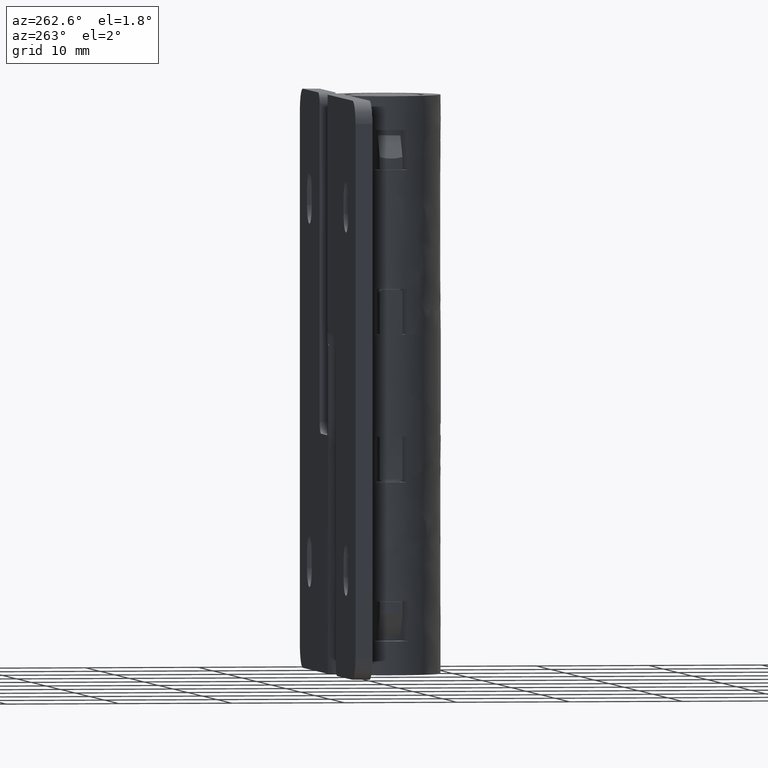
[diagram: clean part render]
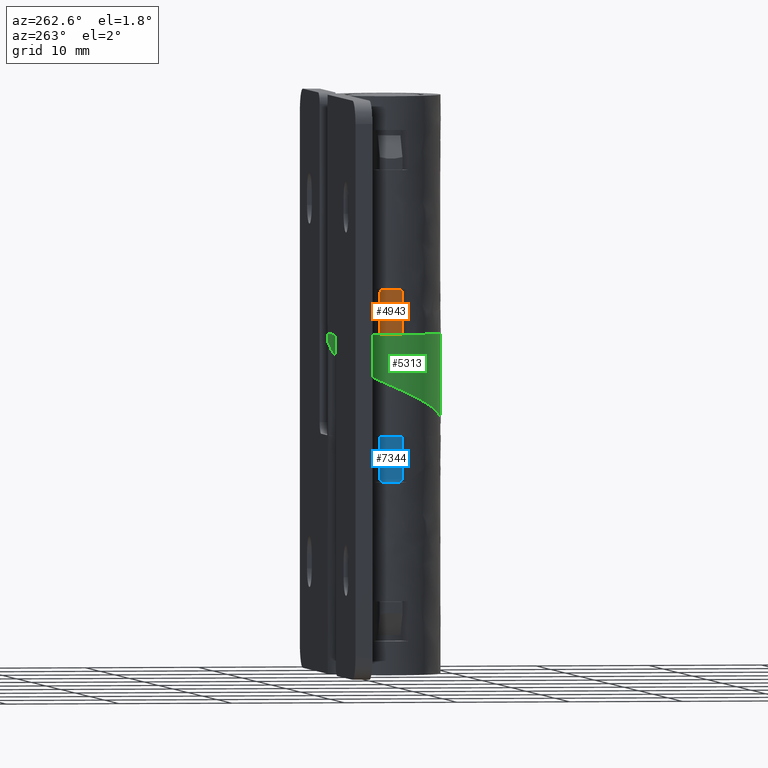
[diagram: same view with three faces highlighted in distinct colors, each labeled with its STEP entity id]
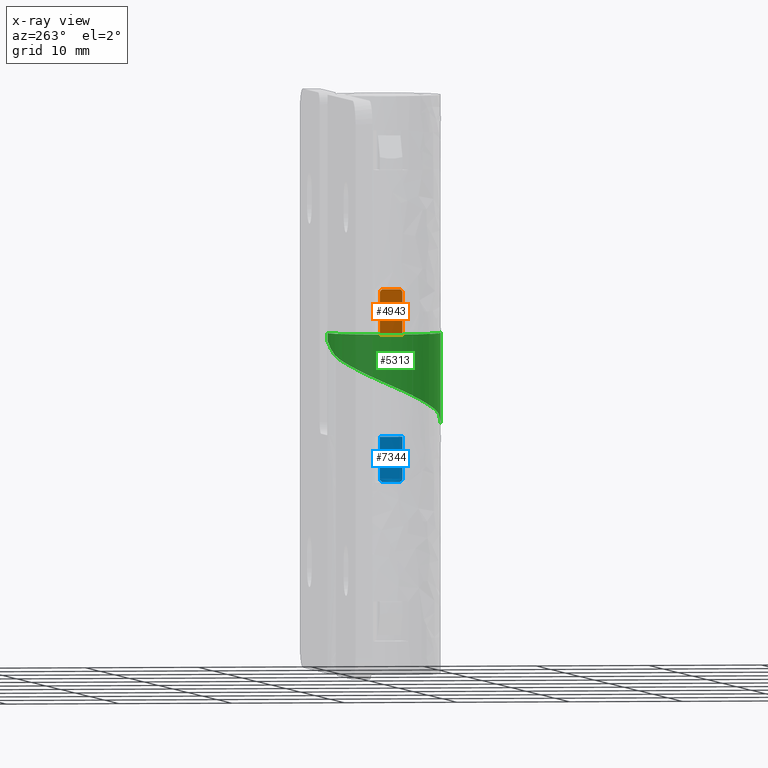
[diagram: x-ray of the same camera — body ghosted, the three highlighted faces saturated]
A machine part, auxiliary view with three faces highlighted in distinct colors.
The next image is the same camera in x-ray (body ghosted, the three faces saturated) — at least one of them is partly hidden behind the body in this view.
Their STEP definitions:

[orange] entity #4943 — the highlighted face is a freeform B-spline surface patch.
#4665=CARTESIAN_POINT('',(-4.898666439074421,-0.999977581259090,30.000002966216051));
#4666=VERTEX_POINT('',#4665);
#4717=CARTESIAN_POINT('',(-4.950757517335090,-0.700000999999986,33.990002977237751));
#4718=VERTEX_POINT('',#4717);
#4724=CARTESIAN_POINT('',(-4.898979420995860,-1.000000999999984,33.690002977475856));
#4725=VERTEX_POINT('',#4724);
#4726=CARTESIAN_POINT('',(-4.950757517335090,-0.700000999999986,33.990002977237751));
#4727=CARTESIAN_POINT('',(-4.947964659649023,-0.719753487197203,33.990002977250597));
#4728=CARTESIAN_POINT('',(-4.945099888856840,-0.739162478379693,33.988071352064061));
#4729=CARTESIAN_POINT('',(-4.939244699504895,-0.777326107007735,33.980518390429502));
#4730=CARTESIAN_POINT('',(-4.936222575296092,-0.796269186637121,33.974811260543220));
#4731=CARTESIAN_POINT('',(-4.930246726953676,-0.832469302408670,33.959883452388539));
#4732=CARTESIAN_POINT('',(-4.927310088161451,-0.849640573216765,33.950749309170021));
#4733=CARTESIAN_POINT('',(-4.921593372317917,-0.882152188414357,33.929171528798733));
#4734=CARTESIAN_POINT('',(-4.918794121116905,-0.897588180308551,33.916588879398937));
#4735=CARTESIAN_POINT('',(-4.913654132690987,-0.925312492600554,33.889042159772032));
#4736=CARTESIAN_POINT('',(-4.911285460620880,-0.937764496385216,33.874004621328609));
#4737=CARTESIAN_POINT('',(-4.907029747623318,-0.959784444371372,33.841332575354151));
#4738=CARTESIAN_POINT('',(-4.905166322375552,-0.969228648763923,33.823797114897609));
#4739=CARTESIAN_POINT('',(-4.900647516948921,-0.991913847371574,33.769529588356697));
#4740=CARTESIAN_POINT('',(-4.898979421179802,-1.000001000000356,33.729915330750487));
#4741=CARTESIAN_POINT('',(-4.898979420996290,-1.000001000000368,33.690002977475899));
#4742=B_SPLINE_CURVE_WITH_KNOTS('',3,(#4726,#4727,#4728,#4729,#4730,#4731,#4732,#4733,#4734,#4735,#4736,#4737,#4738,#4739,#4740,#4741),.UNSPECIFIED.,.F.,.U.,(4,2,2,2,2,2,2,4),(0.0,0.125000000000005,0.250000000000010,0.375000000000015,0.500000000000021,0.625000000000026,0.750000000000031,1.0),.UNSPECIFIED.);
#4743=EDGE_CURVE('',#4718,#4725,#4742,.T.);
#4767=CARTESIAN_POINT('',(-4.898979829244140,0.999999000000016,33.690002977475856));
#4768=VERTEX_POINT('',#4767);
#4769=CARTESIAN_POINT('',(-4.950757800120091,0.699999000000016,33.990002977237751));
#4770=VERTEX_POINT('',#4769);
#4771=CARTESIAN_POINT('',(-4.898979829244140,0.999999000000016,33.690002977475800));
#4772=CARTESIAN_POINT('',(-4.898979829335869,0.999999000000016,33.709954047978833));
#4773=CARTESIAN_POINT('',(-4.899383193251039,0.998028642928041,33.729560808262363));
#4774=CARTESIAN_POINT('',(-4.900947665786986,0.990317537867224,33.768115950852341));
#4775=CARTESIAN_POINT('',(-4.902128657575787,0.984477470455499,33.787269935875223));
#4776=CARTESIAN_POINT('',(-4.905152724420411,0.969297693105622,33.823670756823738));
#4777=CARTESIAN_POINT('',(-4.906983765387121,0.960018793241634,33.840918821289243));
#4778=CARTESIAN_POINT('',(-4.911217604739890,0.938119074906551,33.873536938116047));
#4779=CARTESIAN_POINT('',(-4.913632317966966,0.925427962140347,33.888907096522217));
#4780=CARTESIAN_POINT('',(-4.921330365347945,0.883912424962263,33.930211458503528));
#4781=CARTESIAN_POINT('',(-4.927261334657615,0.850543113070344,33.952392734845517));
#4782=CARTESIAN_POINT('',(-4.936161900657317,0.796642138077099,33.974674863109961));
#4783=CARTESIAN_POINT('',(-4.939172909885393,0.777786831043120,33.980407849621393));
#4784=CARTESIAN_POINT('',(-4.945087385555706,0.739251066636208,33.988072116552672));
#4785=CARTESIAN_POINT('',(-4.947965733072080,0.719745952956945,33.990002977250590));
#4786=CARTESIAN_POINT('',(-4.950757800120091,0.699999000000017,33.990002977237751));
#4787=B_SPLINE_CURVE_WITH_KNOTS('',3,(#4771,#4772,#4773,#4774,#4775,#4776,#4777,#4778,#4779,#4780,#4781,#4782,#4783,#4784,#4785,#4786),.UNSPECIFIED.,.F.,.U.,(4,2,2,2,2,2,2,4),(0.0,0.125000000000000,0.250000000000000,0.375000000000000,0.500000000000000,0.750000000000000,0.875000000000000,1.0),.UNSPECIFIED.);
#4788=EDGE_CURVE('',#4768,#4770,#4787,.T.);
#4838=CARTESIAN_POINT('',(-4.898617200920301,0.999971892840003,30.000002966216449));
#4839=VERTEX_POINT('',#4838);
#4845=CARTESIAN_POINT('',(-4.898979829244140,0.999999000000016,33.690002977475856));
#4846=CARTESIAN_POINT('',(-4.898617200920301,0.999971892840003,30.000002966216449));
#4847=QUASI_UNIFORM_CURVE('',1,(#4845,#4846),.UNSPECIFIED.,.F.,.U.);
#4848=EDGE_CURVE('',#4768,#4839,#4847,.T.);
#4859=CARTESIAN_POINT('',(-4.898979420995860,-1.000000999999984,33.690002977475856));
#4860=CARTESIAN_POINT('',(-4.898666439074421,-0.999977581259090,30.000002966216051));
#4861=QUASI_UNIFORM_CURVE('',1,(#4859,#4860),.UNSPECIFIED.,.F.,.U.);
#4862=EDGE_CURVE('',#4725,#4666,#4861,.T.);
#4875=CARTESIAN_POINT('',(-4.950757517335090,-0.700000999999986,33.990002977237737));
#4876=CARTESIAN_POINT('',(-5.049732411225322,-0.000001019991828,33.990002976782684));
#4877=CARTESIAN_POINT('',(-4.950757800120089,0.699999000000014,33.990002977237737));
#4885=(BOUNDED_CURVE()B_SPLINE_CURVE(2,(#4875,#4876,#4877),.UNSPECIFIED.,.F.,.U.)CURVE()GEOMETRIC_REPRESENTATION_ITEM()QUASI_UNIFORM_CURVE()RATIONAL_B_SPLINE_CURVE((1.0,0.990151503558925,1.0))REPRESENTATION_ITEM(''));
#4886=EDGE_CURVE('',#4718,#4770,#4885,.T.);
#4906=CARTESIAN_POINT('',(-4.878077192241118,1.097435322001306,34.089752978146635));
#4907=CARTESIAN_POINT('',(-4.878077172967449,1.097435322001306,29.897759203994188));
#4908=CARTESIAN_POINT('',(-5.125014106929572,-0.000194098521269,34.089752977011287));
#4909=CARTESIAN_POINT('',(-5.125014087655904,-0.000194098521269,29.897759202858833));
#4910=CARTESIAN_POINT('',(-4.877994052396702,-1.097804811520717,34.089752978147018));
#4911=CARTESIAN_POINT('',(-4.877994033123035,-1.097804811520717,29.897759203994564));
#4919=(BOUNDED_SURFACE()B_SPLINE_SURFACE(1,2,((#4906,#4908,#4910),(#4907,#4909,#4911)),.UNSPECIFIED.,.F.,.F.,.U.)B_SPLINE_SURFACE_WITH_KNOTS((2,2),(3,3),(0.0,4.191993774152461),(0.0,2.222342589140895),.UNSPECIFIED.)GEOMETRIC_REPRESENTATION_ITEM()RATIONAL_B_SPLINE_SURFACE(((0.997181946106479,0.970906449456215,0.993185712195410),(0.997181946106479,0.970906449456215,0.993185712195410)))REPRESENTATION_ITEM('')SURFACE());
#4920=ORIENTED_EDGE('',*,*,#4848,.T.);
#4921=CARTESIAN_POINT('',(-5.000000217232260,0.000000999999986,30.000002954022701));
#4922=VERTEX_POINT('',#4921);
#4923=CARTESIAN_POINT('',(-5.000000217232260,0.000000999999986,30.000002954022701));
#4924=CARTESIAN_POINT('',(-5.000012722508773,0.335651155128334,30.000002957764099));
#4925=CARTESIAN_POINT('',(-4.965674183272119,0.671316678239061,30.000002961860410));
#4926=CARTESIAN_POINT('',(-4.898617200920301,0.999971892840003,30.000002966216449));
#4927=B_SPLINE_CURVE_WITH_KNOTS('',3,(#4923,#4924,#4925,#4926),.UNSPECIFIED.,.F.,.U.,(4,4),(0.449656828534331,0.514970894996678),.UNSPECIFIED.);
#4928=EDGE_CURVE('',#4922,#4839,#4927,.T.);
#4929=ORIENTED_EDGE('',*,*,#4928,.F.);
#4930=CARTESIAN_POINT('',(-4.898666439074421,-0.999977581259090,30.000002966216051));
#4931=CARTESIAN_POINT('',(-4.965728147476770,-0.671319829630937,30.000002961859948));
#4932=CARTESIAN_POINT('',(-5.000041651272228,-0.335667042484547,30.000002957764039));
#4933=CARTESIAN_POINT('',(-5.000000217232260,0.000000999999986,30.000002954022701));
#4934=B_SPLINE_CURVE_WITH_KNOTS('',3,(#4930,#4931,#4932,#4933),.UNSPECIFIED.,.F.,.U.,(4,4),(0.514970894996678,0.580288616783914),.UNSPECIFIED.);
#4935=EDGE_CURVE('',#4666,#4922,#4934,.T.);
#4936=ORIENTED_EDGE('',*,*,#4935,.F.);
#4937=ORIENTED_EDGE('',*,*,#4862,.F.);
#4938=ORIENTED_EDGE('',*,*,#4743,.F.);
#4939=ORIENTED_EDGE('',*,*,#4886,.T.);
#4940=ORIENTED_EDGE('',*,*,#4788,.F.);
#4941=EDGE_LOOP('',(#4920,#4929,#4936,#4937,#4938,#4939,#4940));
#4942=FACE_OUTER_BOUND('',#4941,.T.);
#4943=ADVANCED_FACE('',(#4942),#4919,.T.);

[blue] entity #7344 — the highlighted face is a freeform B-spline surface patch.
#6770=CARTESIAN_POINT('',(-4.898749465433610,-1.000000999999974,21.000000988737899));
#6771=VERTEX_POINT('',#6770);
#6802=CARTESIAN_POINT('',(-4.898783394376890,0.999992996492840,21.000000988737899));
#6803=VERTEX_POINT('',#6802);
#6985=CARTESIAN_POINT('',(-4.898979345685009,-1.000000999999974,17.310000977475799));
#6986=VERTEX_POINT('',#6985);
#6987=CARTESIAN_POINT('',(-4.950757439265599,-0.700000999999973,17.010000977237699));
#6988=VERTEX_POINT('',#6987);
#6989=CARTESIAN_POINT('',(-4.898979345685009,-1.000000999999972,17.310000977475799));
#6990=CARTESIAN_POINT('',(-4.898979345593278,-1.000000999999972,17.290049906274170));
#6991=CARTESIAN_POINT('',(-4.899382710194357,-0.998030642791566,17.270443145347880));
#6992=CARTESIAN_POINT('',(-4.900947185752728,-0.990319537234133,17.231888001571470));
#6993=CARTESIAN_POINT('',(-4.902128179924103,-0.984479469432255,17.212734015980370));
#6994=CARTESIAN_POINT('',(-4.905152253009653,-0.969299691363784,17.176333194507752));
#6995=CARTESIAN_POINT('',(-4.906983297822231,-0.960020791105614,17.159085129869950));
#6996=CARTESIAN_POINT('',(-4.911217146278963,-0.938121071942193,17.126467012845300));
#6997=CARTESIAN_POINT('',(-4.913631864749007,-0.925429958972344,17.111096854715569));
#6998=CARTESIAN_POINT('',(-4.921329929264596,-0.883914421399188,17.069792493552121));
#6999=CARTESIAN_POINT('',(-4.927260912281154,-0.850545109744938,17.047611218062350));
#7000=CARTESIAN_POINT('',(-4.936161500337799,-0.796644135697193,17.025329090720419));
#7001=CARTESIAN_POINT('',(-4.939172517316067,-0.777788828780960,17.019596104398861));
#7002=CARTESIAN_POINT('',(-4.945087008674965,-0.739253065611828,17.011931837883090));
#7003=CARTESIAN_POINT('',(-4.947965364147677,-0.719747952483638,17.010000977250591));
#7004=CARTESIAN_POINT('',(-4.950757439265599,-0.700000999999973,17.010000977237748));
#7005=B_SPLINE_CURVE_WITH_KNOTS('',3,(#6989,#6990,#6991,#6992,#6993,#6994,#6995,#6996,#6997,#6998,#6999,#7000,#7001,#7002,#7003,#7004),.UNSPECIFIED.,.F.,.U.,(4,2,2,2,2,2,2,4),(0.0,0.124999999999999,0.249999999999998,0.374999999999997,0.499999999999996,0.749999999999994,0.874999999999997,1.0),.UNSPECIFIED.);
#7006=EDGE_CURVE('',#6986,#6988,#7005,.T.);
#7081=CARTESIAN_POINT('',(-4.950758576149569,0.699992959340539,17.010000977237699));
#7082=VERTEX_POINT('',#7081);
#7088=CARTESIAN_POINT('',(-4.898980979417790,0.999992996351593,17.310000977475799));
#7089=VERTEX_POINT('',#7088);
#7090=CARTESIAN_POINT('',(-4.950758576149569,0.699992959340539,17.010000977237699));
#7091=CARTESIAN_POINT('',(-4.947965750760339,0.719745449543989,17.010000977250591));
#7092=CARTESIAN_POINT('',(-4.945101011748116,0.739154443817067,17.011932602659758));
#7093=CARTESIAN_POINT('',(-4.939245884975967,0.777318078756395,17.019485565188798));
#7094=CARTESIAN_POINT('',(-4.936223791856861,0.796261161756257,17.025192695828729));
#7095=CARTESIAN_POINT('',(-4.930248003209851,0.832461283054679,17.040120505474899));
#7096=CARTESIAN_POINT('',(-4.927311392804483,0.849632556479899,17.049254649567288));
#7097=CARTESIAN_POINT('',(-4.921594730851099,0.882144176541364,17.070832431921989));
#7098=CARTESIAN_POINT('',(-4.918795505382510,0.897580170312470,17.083415082183031));
#7099=CARTESIAN_POINT('',(-4.913655563411962,0.925304485374940,17.110961802865880));
#7100=CARTESIAN_POINT('',(-4.911286912282518,0.937756490356844,17.125999341797769));
#7101=CARTESIAN_POINT('',(-4.907031236459503,0.959776440276226,17.158671388630989));
#7102=CARTESIAN_POINT('',(-4.905167827386724,0.969220644638237,17.176206848081620));
#7103=CARTESIAN_POINT('',(-4.900649060829679,0.991905843879232,17.230474372511200));
#7104=CARTESIAN_POINT('',(-4.898980979234715,0.999992996351970,17.270088627466329));
#7105=CARTESIAN_POINT('',(-4.898980979418220,0.999992996351976,17.310000977475749));
#7106=B_SPLINE_CURVE_WITH_KNOTS('',3,(#7090,#7091,#7092,#7093,#7094,#7095,#7096,#7097,#7098,#7099,#7100,#7101,#7102,#7103,#7104,#7105),.UNSPECIFIED.,.F.,.U.,(4,2,2,2,2,2,2,4),(0.0,0.125000000000000,0.250000000000000,0.375000000000000,0.500000000000000,0.625000000000000,0.750000000000000,1.0),.UNSPECIFIED.);
#7107=EDGE_CURVE('',#7082,#7089,#7106,.T.);
#7250=CARTESIAN_POINT('',(-4.950758576149566,0.699992959340538,17.010000977237681));
#7251=CARTESIAN_POINT('',(-5.049731897565760,-0.000004100702800,17.010000976782628));
#7252=CARTESIAN_POINT('',(-4.950757439265602,-0.700000999999972,17.010000977237691));
#7260=(BOUNDED_CURVE()B_SPLINE_CURVE(2,(#7250,#7251,#7252),.UNSPECIFIED.,.F.,.U.)CURVE()GEOMETRIC_REPRESENTATION_ITEM()QUASI_UNIFORM_CURVE()RATIONAL_B_SPLINE_CURVE((1.0,0.990151588969128,1.0))REPRESENTATION_ITEM(''));
#7261=EDGE_CURVE('',#7082,#6988,#7260,.T.);
#7272=CARTESIAN_POINT('',(-4.898980979417790,0.999992996351593,17.310000977475799));
#7273=CARTESIAN_POINT('',(-4.898783394376890,0.999992996492840,21.000000988737899));
#7274=QUASI_UNIFORM_CURVE('',1,(#7272,#7273),.UNSPECIFIED.,.F.,.U.);
#7275=EDGE_CURVE('',#7089,#6803,#7274,.T.);
#7298=CARTESIAN_POINT('',(-4.898979345685009,-1.000000999999974,17.310000977475799));
#7299=CARTESIAN_POINT('',(-4.898749465433610,-1.000000999999974,21.000000988737899));
#7300=QUASI_UNIFORM_CURVE('',1,(#7298,#7299),.UNSPECIFIED.,.F.,.U.);
#7301=EDGE_CURVE('',#6986,#6771,#7300,.T.);
#7307=CARTESIAN_POINT('',(-4.878076727185193,-1.097437038069377,16.910250976997133));
#7308=CARTESIAN_POINT('',(-4.878076746458861,-1.097437038069377,21.102244751149662));
#7309=CARTESIAN_POINT('',(-5.125013238187320,0.000188784839625,16.910250975861786));
#7310=CARTESIAN_POINT('',(-5.125013257460988,0.000188784839625,21.102244750014311));
#7311=CARTESIAN_POINT('',(-4.877995863628225,1.097796412477344,16.910250976997510));
#7312=CARTESIAN_POINT('',(-4.877995882901892,1.097796412477344,21.102244751150032));
#7320=(BOUNDED_SURFACE()B_SPLINE_SURFACE(1,2,((#7307,#7309,#7311),(#7308,#7310,#7312)),.UNSPECIFIED.,.F.,.F.,.U.)B_SPLINE_SURFACE_WITH_KNOTS((2,2),(3,3),(0.0,4.191993774152532),(0.0,2.222335654584678),.UNSPECIFIED.)GEOMETRIC_REPRESENTATION_ITEM()RATIONAL_B_SPLINE_SURFACE(((0.997181789284800,0.970906519672036,0.993185705869486),(0.997181789284800,0.970906519672036,0.993185705869486)))REPRESENTATION_ITEM('')SURFACE());
#7321=ORIENTED_EDGE('',*,*,#7261,.T.);
#7322=ORIENTED_EDGE('',*,*,#7006,.F.);
#7323=ORIENTED_EDGE('',*,*,#7301,.T.);
#7324=CARTESIAN_POINT('',(-5.000000175852681,-1.882719E-015,21.000001000000001));
#7325=VERTEX_POINT('',#7324);
#7326=CARTESIAN_POINT('',(-5.000000175852681,-1.882719E-015,21.000001000000001));
#7327=CARTESIAN_POINT('',(-5.000056840273361,-0.335660182310645,21.000000996258279));
#7328=CARTESIAN_POINT('',(-4.965762713447924,-0.671335826723468,21.000000992477521));
#7329=CARTESIAN_POINT('',(-4.898749465433610,-1.000000999999974,21.000000988737899));
#7330=B_SPLINE_CURVE_WITH_KNOTS('',3,(#7326,#7327,#7328,#7329),.UNSPECIFIED.,.F.,.U.,(4,4),(0.449656631399457,0.514970894996678),.UNSPECIFIED.);
#7331=EDGE_CURVE('',#7325,#6771,#7330,.T.);
#7332=ORIENTED_EDGE('',*,*,#7331,.F.);
#7333=CARTESIAN_POINT('',(-4.898783394376890,0.999992996492840,21.000000988737899));
#7334=CARTESIAN_POINT('',(-4.965805647569264,0.671330340921211,21.000000992477521));
#7335=CARTESIAN_POINT('',(-5.000079866305920,0.335672757640572,21.000000996258098));
#7336=CARTESIAN_POINT('',(-5.000000175852681,-1.882719E-015,21.000001000000001));
#7337=B_SPLINE_CURVE_WITH_KNOTS('',3,(#7333,#7334,#7335,#7336),.UNSPECIFIED.,.F.,.U.,(4,4),(0.514970894996678,0.580288014737582),.UNSPECIFIED.);
#7338=EDGE_CURVE('',#6803,#7325,#7337,.T.);
#7339=ORIENTED_EDGE('',*,*,#7338,.F.);
#7340=ORIENTED_EDGE('',*,*,#7275,.F.);
#7341=ORIENTED_EDGE('',*,*,#7107,.F.);
#7342=EDGE_LOOP('',(#7321,#7322,#7323,#7332,#7339,#7340,#7341));
#7343=FACE_OUTER_BOUND('',#7342,.T.);
#7344=ADVANCED_FACE('',(#7343),#7320,.T.);

[green] entity #5313 — the highlighted face is a freeform B-spline surface patch.
#1455=CARTESIAN_POINT('',(-0.000000122588113,5.000000999999999,30.000003000000000));
#1456=VERTEX_POINT('',#1455);
#2205=CARTESIAN_POINT('',(-0.435778781358696,-4.980972495769680,22.000002995992851));
#2206=VERTEX_POINT('',#2205);
#2760=CARTESIAN_POINT('',(-0.000000117372431,5.000000999999999,29.243860644120449));
#2761=VERTEX_POINT('',#2760);
#2773=CARTESIAN_POINT('',(-0.000000117372431,5.000000999999999,29.243860644120449));
#2774=CARTESIAN_POINT('',(-0.000000122588113,5.000000999999999,30.000003000000000));
#2775=QUASI_UNIFORM_CURVE('',1,(#2773,#2774),.UNSPECIFIED.,.F.,.U.);
#2776=EDGE_CURVE('',#2761,#1456,#2775,.T.);
#2788=CARTESIAN_POINT('',(-3.570542092411155,3.500001000000000,30.000002983583649));
#2789=VERTEX_POINT('',#2788);
#2795=CARTESIAN_POINT('',(-3.584541437848685,3.485714161991935,30.000002983327249));
#2796=VERTEX_POINT('',#2795);
#2797=CARTESIAN_POINT('',(-3.570542092411155,3.500001000000000,30.000002983583649));
#2798=CARTESIAN_POINT('',(-3.577557468406379,3.492869091665835,30.000002983455349));
#2799=CARTESIAN_POINT('',(-3.584541437848685,3.485714161991935,30.000002983327249));
#2800=B_SPLINE_CURVE_WITH_KNOTS('',2,(#2797,#2798,#2799),.UNSPECIFIED.,.F.,.U.,(3,3),(0.964771654596716,0.974861537106423),.UNSPECIFIED.);
#2801=EDGE_CURVE('',#2789,#2796,#2800,.T.);
#3706=CARTESIAN_POINT('',(-4.791457620869320,-1.428536179236820,30.000002977970201));
#3707=VERTEX_POINT('',#3706);
#4470=CARTESIAN_POINT('',(-4.619398150311129,-1.913416280235105,30.000002978761302));
#4471=VERTEX_POINT('',#4470);
#4472=CARTESIAN_POINT('',(-4.619398150311129,-1.913416280235105,30.000002978761302));
#4473=CARTESIAN_POINT('',(-4.685019561492642,-1.754886531019706,30.000002978459591));
#4474=CARTESIAN_POINT('',(-4.742474042388009,-1.592974289810476,30.000002978195418));
#4475=CARTESIAN_POINT('',(-4.791457620869320,-1.428536179236820,30.000002977970201));
#4476=QUASI_UNIFORM_CURVE('',3,(#4472,#4473,#4474,#4475),.UNSPECIFIED.,.F.,.U.);
#4477=EDGE_CURVE('',#4471,#3707,#4476,.T.);
#4479=CARTESIAN_POINT('',(-3.535534568171015,-3.535533366282505,30.000002983744601));
#4480=VERTEX_POINT('',#4479);
#4481=CARTESIAN_POINT('',(-3.535534568171022,-3.535533366282498,30.000002983744611));
#4482=CARTESIAN_POINT('',(-3.766934708395040,-3.304133155418425,30.000002982680691));
#4483=CARTESIAN_POINT('',(-3.975538756606344,-3.049948303154036,30.000002981721590));
#4484=CARTESIAN_POINT('',(-4.339158565735490,-2.505752599070094,30.000002980049761));
#4485=CARTESIAN_POINT('',(-4.494165335433502,-2.215755203566960,30.000002979337079));
#4486=CARTESIAN_POINT('',(-4.619398150311127,-1.913416280235114,30.000002978761302));
#4487=B_SPLINE_CURVE_WITH_KNOTS('',3,(#4481,#4482,#4483,#4484,#4485,#4486),.UNSPECIFIED.,.F.,.U.,(4,2,4),(0.0,0.500000000000000,1.0),.UNSPECIFIED.);
#4488=EDGE_CURVE('',#4480,#4471,#4487,.T.);
#4490=CARTESIAN_POINT('',(-1.913427222340860,-4.619393070835010,30.000002986803949));
#4491=VERTEX_POINT('',#4490);
#4492=CARTESIAN_POINT('',(-3.535534568171015,-3.535533366282505,30.000002983744601));
#4493=CARTESIAN_POINT('',(-3.072735959979781,-3.998330060294436,30.000002984425102));
#4494=CARTESIAN_POINT('',(-2.518100769382063,-4.368926208176383,30.000002985471149));
#4495=CARTESIAN_POINT('',(-1.913427222340860,-4.619393070835010,30.000002986803949));
#4496=QUASI_UNIFORM_CURVE('',3,(#4492,#4493,#4494,#4495),.UNSPECIFIED.,.F.,.U.);
#4497=EDGE_CURVE('',#4480,#4491,#4496,.T.);
#4499=CARTESIAN_POINT('',(-0.435784512049366,-4.980972993894070,30.000002997996450));
#4500=VERTEX_POINT('',#4499);
#4542=CARTESIAN_POINT('',(-4.619397443204369,1.913417987341835,30.000002978761302));
#4543=VERTEX_POINT('',#4542);
#4544=CARTESIAN_POINT('',(-4.619397443204369,1.913417987341835,30.000002978761302));
#4545=CARTESIAN_POINT('',(-4.498611684250284,2.204985932177811,30.000002979285011));
#4546=CARTESIAN_POINT('',(-4.350139417067682,2.485078335470160,30.000002979935459));
#4547=CARTESIAN_POINT('',(-4.003117236373716,3.012322362078792,30.000002981466569));
#4548=CARTESIAN_POINT('',(-3.804574746648910,3.259462706153187,30.000002982347230));
#4549=CARTESIAN_POINT('',(-3.584541437848685,3.485714161991935,30.000002983327249));
#4550=B_SPLINE_CURVE_WITH_KNOTS('',3,(#4544,#4545,#4546,#4547,#4548,#4549),.UNSPECIFIED.,.F.,.U.,(4,2,4),(0.0,0.500000000000000,1.0),.UNSPECIFIED.);
#4551=EDGE_CURVE('',#4543,#2796,#4550,.T.);
#4553=CARTESIAN_POINT('',(-4.791434568642100,1.428529306383364,30.000002977970151));
#4554=VERTEX_POINT('',#4553);
#4555=CARTESIAN_POINT('',(-4.791434568642100,1.428529306383364,30.000002977970151));
#4556=CARTESIAN_POINT('',(-4.742458491471915,1.592970296129475,30.000002978195379));
#4557=CARTESIAN_POINT('',(-4.685011471381356,1.754885404428519,30.000002978459570));
#4558=CARTESIAN_POINT('',(-4.619397443204369,1.913417987341835,30.000002978761302));
#4559=QUASI_UNIFORM_CURVE('',3,(#4555,#4556,#4557,#4558),.UNSPECIFIED.,.F.,.U.);
#4560=EDGE_CURVE('',#4554,#4543,#4559,.T.);
#4601=CARTESIAN_POINT('',(-1.913427222340860,-4.619393070835010,30.000002986803949));
#4602=CARTESIAN_POINT('',(-1.824672030518029,-4.653943734500976,30.000002987485061));
#4603=CARTESIAN_POINT('',(-1.577048143469135,-4.739771075372834,30.000002989378011));
#4604=CARTESIAN_POINT('',(-1.277181595819775,-4.817697396156651,30.000002991652529));
#4605=CARTESIAN_POINT('',(-1.005564147470050,-4.875833730599466,30.000002993704211));
#4606=CARTESIAN_POINT('',(-0.764157436669434,-4.923476542793436,30.000002995524820));
#4607=CARTESIAN_POINT('',(-0.568658528594237,-4.957492526097751,30.000002996996230));
#4608=CARTESIAN_POINT('',(-0.435784512049366,-4.980972993894070,30.000002997996450));
#4609=B_SPLINE_CURVE_WITH_KNOTS('',3,(#4601,#4602,#4603,#4604,#4605,#4606,#4607,#4608),.UNSPECIFIED.,.F.,.U.,(4,1,1,1,1,4),(0.000008269700658,0.285733312796698,0.785762019191069,0.928618351184354,1.119092380881712,1.523896822587762),.UNSPECIFIED.);
#4610=EDGE_CURVE('',#4491,#4500,#4609,.T.);
#4621=CARTESIAN_POINT('',(-1.913417365615270,4.619398667146871,30.000002982405249));
#4622=VERTEX_POINT('',#4621);
#4623=CARTESIAN_POINT('',(-0.000000122588113,5.000000999999999,30.000003000000000));
#4624=CARTESIAN_POINT('',(-0.070947922344182,4.992320841764506,30.000002999673800));
#4625=CARTESIAN_POINT('',(-0.222917936844969,4.975405929482255,30.000002998975098));
#4626=CARTESIAN_POINT('',(-0.435574288158908,4.951032489083731,30.000002997997370));
#4627=CARTESIAN_POINT('',(-0.688234715383186,4.918147112716893,30.000002996835700));
#4628=CARTESIAN_POINT('',(-1.101339464369123,4.855256087644577,30.000002994936359));
#4629=CARTESIAN_POINT('',(-1.469507609163855,4.770304722380104,30.000002993243690));
#4630=CARTESIAN_POINT('',(-1.731276105338628,4.684952198177562,30.000002992040049));
#4631=CARTESIAN_POINT('',(-1.769807732441056,4.671653813850537,30.000002993768710));
#4632=CARTESIAN_POINT('',(-1.827648836092087,4.651838501888276,30.000002983534149));
#4633=CARTESIAN_POINT('',(-1.875410564019689,4.634085239247397,30.000003001279261));
#4634=CARTESIAN_POINT('',(-1.913417365615270,4.619398667146871,30.000002982405249));
#4635=B_SPLINE_CURVE_WITH_KNOTS('',3,(#4623,#4624,#4625,#4626,#4627,#4628,#4629,#4630,#4631,#4632,#4633,#4634),.UNSPECIFIED.,.F.,.U.,(4,1,1,1,1,1,1,1,1,4),(0.000003838663816,0.214089257109235,0.458737564464939,0.642133564072831,0.978435944944646,1.712277899526473,1.773431625459263,1.804023212888624,1.834614800317985,1.956856853808477),.UNSPECIFIED.);
#4636=EDGE_CURVE('',#1456,#4622,#4635,.T.);
#4638=CARTESIAN_POINT('',(-3.535534111334510,3.535534909446105,30.000002967489149));
#4639=VERTEX_POINT('',#4638);
#4640=CARTESIAN_POINT('',(-1.913417365615270,4.619398667146871,30.000002982405249));
#4641=CARTESIAN_POINT('',(-2.046984875640089,4.567577335121731,30.000002984577840));
#4642=CARTESIAN_POINT('',(-2.345833082749399,4.432572989578175,30.000002989245829));
#4643=CARTESIAN_POINT('',(-2.909363459081572,4.096454415573495,30.000002980556911));
#4644=CARTESIAN_POINT('',(-3.304641028430456,3.767755150571653,30.000002996350819));
#4645=CARTESIAN_POINT('',(-3.535534111334510,3.535534909446105,30.000002967489149));
#4646=B_SPLINE_CURVE_WITH_KNOTS('',3,(#4640,#4641,#4642,#4643,#4644,#4645),.UNSPECIFIED.,.F.,.U.,(4,1,1,4),(0.000003981237746,0.429802401647443,0.982449299091989,1.964896686733520),.UNSPECIFIED.);
#4647=EDGE_CURVE('',#4622,#4639,#4646,.T.);
#4649=CARTESIAN_POINT('',(-3.535534111334510,3.535534909446105,30.000002967489149));
#4650=CARTESIAN_POINT('',(-3.570542101918151,3.500000999991926,30.000002983583620));
#4651=QUASI_UNIFORM_CURVE('',1,(#4649,#4650),.UNSPECIFIED.,.F.,.U.);
#4652=EDGE_CURVE('',#4639,#2789,#4651,.T.);
#4665=CARTESIAN_POINT('',(-4.898666439074421,-0.999977581259090,30.000002966216051));
#4666=VERTEX_POINT('',#4665);
#4672=CARTESIAN_POINT('',(-4.898666439074421,-0.999977581259090,30.000002966216051));
#4673=CARTESIAN_POINT('',(-4.854277327074823,-1.217390820954285,30.000002972071240));
#4674=CARTESIAN_POINT('',(-4.791457620869320,-1.428536179236820,30.000002977970201));
#4675=B_SPLINE_CURVE_WITH_KNOTS('',2,(#4672,#4673,#4674),.UNSPECIFIED.,.F.,.U.,(3,3),(0.262817771930936,0.487726202085114),.UNSPECIFIED.);
#4676=EDGE_CURVE('',#4666,#3707,#4675,.T.);
#4838=CARTESIAN_POINT('',(-4.898617200920301,0.999971892840003,30.000002966216449));
#4839=VERTEX_POINT('',#4838);
#4921=CARTESIAN_POINT('',(-5.000000217232260,0.000000999999986,30.000002954022701));
#4922=VERTEX_POINT('',#4921);
#4923=CARTESIAN_POINT('',(-5.000000217232260,0.000000999999986,30.000002954022701));
#4924=CARTESIAN_POINT('',(-5.000012722508773,0.335651155128334,30.000002957764099));
#4925=CARTESIAN_POINT('',(-4.965674183272119,0.671316678239061,30.000002961860410));
#4926=CARTESIAN_POINT('',(-4.898617200920301,0.999971892840003,30.000002966216449));
#4927=B_SPLINE_CURVE_WITH_KNOTS('',3,(#4923,#4924,#4925,#4926),.UNSPECIFIED.,.F.,.U.,(4,4),(0.449656828534331,0.514970894996678),.UNSPECIFIED.);
#4928=EDGE_CURVE('',#4922,#4839,#4927,.T.);
#4930=CARTESIAN_POINT('',(-4.898666439074421,-0.999977581259090,30.000002966216051));
#4931=CARTESIAN_POINT('',(-4.965728147476770,-0.671319829630937,30.000002961859948));
#4932=CARTESIAN_POINT('',(-5.000041651272228,-0.335667042484547,30.000002957764039));
#4933=CARTESIAN_POINT('',(-5.000000217232260,0.000000999999986,30.000002954022701));
#4934=B_SPLINE_CURVE_WITH_KNOTS('',3,(#4930,#4931,#4932,#4933),.UNSPECIFIED.,.F.,.U.,(4,4),(0.514970894996678,0.580288616783914),.UNSPECIFIED.);
#4935=EDGE_CURVE('',#4666,#4922,#4934,.T.);
#4984=CARTESIAN_POINT('',(-0.161571183023084,4.982833967561291,29.196268730724299));
#4985=VERTEX_POINT('',#4984);
#4999=CARTESIAN_POINT('',(-0.161571183023084,4.982833967561291,29.196268730724299));
#5000=CARTESIAN_POINT('',(-0.137420302127024,4.985436787692228,29.211763348035539));
#5001=CARTESIAN_POINT('',(-0.111688454759682,4.988186218594077,29.223492996880420));
#5002=CARTESIAN_POINT('',(-0.070779111178947,4.992528800564068,29.235581585976689));
#5003=CARTESIAN_POINT('',(-0.056716233498259,4.994017155560156,29.238669677641600));
#5004=CARTESIAN_POINT('',(-0.028534212602926,4.996993918306768,29.242777360331370));
#5005=CARTESIAN_POINT('',(-0.014326530905502,4.998491752478746,29.243829503275219));
#5006=CARTESIAN_POINT('',(-0.000000117349872,5.000001000000309,29.243860644107201));
#5007=B_SPLINE_CURVE_WITH_KNOTS('',3,(#4999,#5000,#5001,#5002,#5003,#5004,#5005,#5006),.UNSPECIFIED.,.F.,.U.,(4,2,2,4),(0.0,0.500000000000009,0.750000000000004,1.0),.UNSPECIFIED.);
#5008=EDGE_CURVE('',#4985,#2761,#5007,.T.);
#5021=CARTESIAN_POINT('',(-0.435778781358696,-4.980972495769680,22.000002995992851));
#5022=CARTESIAN_POINT('',(-0.435784512049366,-4.980972993894070,30.000002997996450));
#5023=QUASI_UNIFORM_CURVE('',1,(#5021,#5022),.UNSPECIFIED.,.F.,.U.);
#5024=EDGE_CURVE('',#2206,#4500,#5023,.T.);
#5101=CARTESIAN_POINT('',(-1.913417303943920,-4.619396676432791,22.875002982405249));
#5102=VERTEX_POINT('',#5101);
#5103=CARTESIAN_POINT('',(-1.913417303943920,-4.619396676432791,22.875002982405249));
#5104=CARTESIAN_POINT('',(-1.435386743761095,-4.807119740554930,22.611425794236201));
#5105=CARTESIAN_POINT('',(-0.933244455386360,-4.894981305201921,22.304429761093001));
#5106=CARTESIAN_POINT('',(-0.435778781359754,-4.980972495769589,22.000002995992851));
#5107=B_SPLINE_CURVE_WITH_KNOTS('',3,(#5103,#5104,#5105,#5106),.UNSPECIFIED.,.F.,.U.,(4,4),(0.897442410810304,1.0),.UNSPECIFIED.);
#5108=EDGE_CURVE('',#5102,#2206,#5107,.T.);
#5110=CARTESIAN_POINT('',(-3.535534060969960,-3.535532916553240,23.750002967489149));
#5111=VERTEX_POINT('',#5110);
#5112=CARTESIAN_POINT('',(-3.535534060969960,-3.535532916553240,23.750002967489149));
#5113=CARTESIAN_POINT('',(-3.068453168770794,-4.003497156071018,23.467144967820659));
#5114=CARTESIAN_POINT('',(-2.507662529168150,-4.386036001535890,23.202658782097689));
#5115=CARTESIAN_POINT('',(-1.913417304068756,-4.619396676732032,22.875002982405672));
#5116=B_SPLINE_CURVE_WITH_KNOTS('',3,(#5112,#5113,#5114,#5115),.UNSPECIFIED.,.F.,.U.,(4,4),(0.769951905528679,0.897442410810304),.UNSPECIFIED.);
#5117=EDGE_CURVE('',#5111,#5102,#5116,.T.);
#5119=CARTESIAN_POINT('',(-4.619397828891040,-1.913416167575620,24.625002957525599));
#5120=VERTEX_POINT('',#5119);
#5121=CARTESIAN_POINT('',(-4.619397828891040,-1.913416167575620,24.625002957525599));
#5122=CARTESIAN_POINT('',(-4.370041141191656,-2.516513635101712,24.330812841304510));
#5123=CARTESIAN_POINT('',(-4.002614953593732,-3.067568677527957,24.032860967137061));
#5124=CARTESIAN_POINT('',(-3.535534061201352,-3.535532916780368,23.750002967490421));
#5125=B_SPLINE_CURVE_WITH_KNOTS('',3,(#5121,#5122,#5123,#5124),.UNSPECIFIED.,.F.,.U.,(4,4),(0.642461400257470,0.769951905528679),.UNSPECIFIED.);
#5126=EDGE_CURVE('',#5120,#5111,#5125,.T.);
#5128=CARTESIAN_POINT('',(-5.000000175525380,0.000000999983800,25.500002954025199));
#5129=VERTEX_POINT('',#5128);
#5130=CARTESIAN_POINT('',(-5.000000175525380,0.000000999983800,25.500002954025199));
#5131=CARTESIAN_POINT('',(-5.000041705600457,-0.655178807972800,25.209621431982779));
#5132=CARTESIAN_POINT('',(-4.868754517184375,-1.310318700320433,24.919193073726579));
#5133=CARTESIAN_POINT('',(-4.619397829197845,-1.913416167687299,24.625002957527141));
#5134=B_SPLINE_CURVE_WITH_KNOTS('',3,(#5130,#5131,#5132,#5133),.UNSPECIFIED.,.F.,.U.,(4,4),(0.514970894996678,0.642461400257470),.UNSPECIFIED.);
#5135=EDGE_CURVE('',#5129,#5120,#5134,.T.);
#5137=CARTESIAN_POINT('',(-4.619397835720780,1.913418163721485,26.375002957525052));
#5138=VERTEX_POINT('',#5137);
#5139=CARTESIAN_POINT('',(-4.619397835720780,1.913418163721485,26.375002957525052));
#5140=CARTESIAN_POINT('',(-4.868588398360924,1.310400530790111,26.080719161540848));
#5141=CARTESIAN_POINT('',(-4.999958646106091,0.655180807582498,25.790384475889891));
#5142=CARTESIAN_POINT('',(-5.000000175853261,0.000001000010987,25.500002954027700));
#5143=B_SPLINE_CURVE_WITH_KNOTS('',3,(#5139,#5140,#5141,#5142),.UNSPECIFIED.,.F.,.U.,(4,4),(0.387480389816541,0.514970894996678),.UNSPECIFIED.);
#5144=EDGE_CURVE('',#5138,#5129,#5143,.T.);
#5146=CARTESIAN_POINT('',(-3.535534086046985,3.535534909446100,27.250002967489149));
#5147=VERTEX_POINT('',#5146);
#5148=CARTESIAN_POINT('',(-3.535534086046985,3.535534909446100,27.250002967489149));
#5149=CARTESIAN_POINT('',(-4.003196395908950,3.067251338719624,26.967519659485269));
#5150=CARTESIAN_POINT('',(-4.370207273192349,2.516435796329170,26.669286753341499));
#5151=CARTESIAN_POINT('',(-4.619397835702716,1.913418163738997,26.375002957528661));
#5152=B_SPLINE_CURVE_WITH_KNOTS('',3,(#5148,#5149,#5150,#5151),.UNSPECIFIED.,.F.,.U.,(4,4),(0.259989884711852,0.387480389816541),.UNSPECIFIED.);
#5153=EDGE_CURVE('',#5147,#5138,#5152,.T.);
#5155=CARTESIAN_POINT('',(-1.913417348373760,4.619398667146880,28.125002982405249));
#5156=VERTEX_POINT('',#5155);
#5157=CARTESIAN_POINT('',(-1.913417348373759,4.619398667146874,28.125002982405260));
#5158=CARTESIAN_POINT('',(-2.506803448781072,4.386729117017171,27.795192909440949));
#5159=CARTESIAN_POINT('',(-3.067871776181093,4.003818480176532,27.532486275495408));
#5160=CARTESIAN_POINT('',(-3.535534086045006,3.535534909448085,27.250002967490349));
#5161=B_SPLINE_CURVE_WITH_KNOTS('',3,(#5157,#5158,#5159,#5160),.UNSPECIFIED.,.F.,.U.,(4,4),(0.132499379607163,0.259989884711852),.UNSPECIFIED.);
#5162=EDGE_CURVE('',#5156,#5147,#5161,.T.);
#5164=CARTESIAN_POINT('',(-0.161571183023084,4.982833967561291,29.196268730724299));
#5165=CARTESIAN_POINT('',(-0.753342628469361,4.919056805588326,28.816602578557209));
#5166=CARTESIAN_POINT('',(-1.348191516746635,4.841026440153521,28.439161289521479));
#5167=CARTESIAN_POINT('',(-1.913417348373759,4.619398667146874,28.125002982405260));
#5168=B_SPLINE_CURVE_WITH_KNOTS('',3,(#5164,#5165,#5166,#5167),.UNSPECIFIED.,.F.,.U.,(4,4),(0.0,0.121440200103424),.UNSPECIFIED.);
#5169=EDGE_CURVE('',#4985,#5156,#5168,.T.);
#5175=CARTESIAN_POINT('',(-0.000000117321656,5.000000999999999,29.239323789969699));
#5176=CARTESIAN_POINT('',(-0.000000117461150,5.000000999999999,29.259550193313149));
#5177=CARTESIAN_POINT('',(-0.000000117600643,5.000000999999999,29.279776596656550));
#5178=CARTESIAN_POINT('',(-0.000000117740137,5.000000999999999,29.300003000000000));
#5179=CARTESIAN_POINT('',(-0.000000119349343,5.000000999999999,29.533336333333299));
#5180=CARTESIAN_POINT('',(-0.000000120958550,5.000000999999999,29.766669666666701));
#5181=CARTESIAN_POINT('',(-0.000000122567756,5.000000999999999,30.000003000000000));
#5182=CARTESIAN_POINT('',(-0.644754899928204,4.932077890104200,28.789148917141851));
#5183=CARTESIAN_POINT('',(-0.644754900197928,4.932077890104200,28.821390008995650));
#5184=CARTESIAN_POINT('',(-0.644754900467653,4.932077890104200,28.853631100849402));
#5185=CARTESIAN_POINT('',(-0.644754900737377,4.932077890104200,28.885872192703150));
#5186=CARTESIAN_POINT('',(-0.644754903848938,4.932077890104230,29.257807890059251));
#5187=CARTESIAN_POINT('',(-0.648534779728210,4.929194123174760,29.628067296680349));
#5188=CARTESIAN_POINT('',(-0.648534782839770,4.929194123174780,30.000002994036450));
#5189=CARTESIAN_POINT('',(-1.296718165479896,4.861209388819661,28.335003363664249));
#5190=CARTESIAN_POINT('',(-1.296718165879852,4.861209388819670,28.379259144028349));
#5191=CARTESIAN_POINT('',(-1.296718166279808,4.861209388819670,28.423514924392450));
#5192=CARTESIAN_POINT('',(-1.296718166679764,4.861209388819670,28.467770704756550));
#5193=CARTESIAN_POINT('',(-1.296718171293678,4.861209388819720,28.978308766135449));
#5194=CARTESIAN_POINT('',(-1.297069438497870,4.858387246349531,29.489464926693952));
#5195=CARTESIAN_POINT('',(-1.297069443111784,4.858387246349580,30.000002988072850));
#5196=CARTESIAN_POINT('',(-2.506803447005445,4.386729117016200,27.604018307864301));
#5197=CARTESIAN_POINT('',(-2.506803447598160,4.386729117016195,27.667743175056049));
#5198=CARTESIAN_POINT('',(-2.506803448190870,4.386729117016190,27.731468042247801));
#5199=CARTESIAN_POINT('',(-2.506803448783585,4.386729117016186,27.795192909439550));
#5200=CARTESIAN_POINT('',(-2.506803455621160,4.386729117016141,28.530327843001700));
#5201=CARTESIAN_POINT('',(-2.506465478649395,4.389444574024824,29.264868043389750));
#5202=CARTESIAN_POINT('',(-2.506465485486970,4.389444574024775,30.000002976951901));
#5203=CARTESIAN_POINT('',(-3.067871774210635,4.003818480174950,27.318482810356649));
#5204=CARTESIAN_POINT('',(-3.067871774868245,4.003818480174934,27.389817298735899));
#5205=CARTESIAN_POINT('',(-3.067871775525855,4.003818480174926,27.461151787115099));
#5206=CARTESIAN_POINT('',(-3.067871776183470,4.003818480174910,27.532486275494300));
#5207=CARTESIAN_POINT('',(-3.067871783769730,4.003818480174750,28.355406380098749));
#5208=CARTESIAN_POINT('',(-3.069714373713760,4.003783982538390,29.177082867168149));
#5209=CARTESIAN_POINT('',(-3.069714381300025,4.003783982538235,30.000002971772549));
#5210=CARTESIAN_POINT('',(-4.003196393499260,3.067251338717250,26.704757902954999));
#5211=CARTESIAN_POINT('',(-4.003196394303010,3.067251338717265,26.792345155131301));
#5212=CARTESIAN_POINT('',(-4.003196395106755,3.067251338717280,26.879932407307649));
#5213=CARTESIAN_POINT('',(-4.003196395910504,3.067251338717290,26.967519659484001));
#5214=CARTESIAN_POINT('',(-4.003196405182595,3.067251338717450,27.977932888212852));
#5215=CARTESIAN_POINT('',(-4.001353832096910,3.067285836353815,28.989589734476851));
#5216=CARTESIAN_POINT('',(-4.001353841369000,3.067285836353975,30.000002963205699));
#5217=CARTESIAN_POINT('',(-4.737218147794840,1.965620253609705,26.056433234817700));
#5218=CARTESIAN_POINT('',(-4.737218148761060,1.965620253609790,26.161306772218449));
#5219=CARTESIAN_POINT('',(-4.737218149727280,1.965620253609880,26.266180309619202));
#5220=CARTESIAN_POINT('',(-4.737218150693500,1.965620253609970,26.371053847020001));
#5221=CARTESIAN_POINT('',(-4.737218161839870,1.965620253610995,27.580882981972149));
#5222=CARTESIAN_POINT('',(-4.738134958952490,1.965610726631545,28.790173821478501));
#5223=CARTESIAN_POINT('',(-4.738134970098860,1.965610726632570,30.000002956430698));
#5224=CARTESIAN_POINT('',(-5.131328890359500,-0.000038916038639,25.109974827215598));
#5225=CARTESIAN_POINT('',(-5.131328891551120,-0.000038916038970,25.239999814828799));
#5226=CARTESIAN_POINT('',(-5.131328892742750,-0.000038916039302,25.370024802442000));
#5227=CARTESIAN_POINT('',(-5.131328893934370,-0.000038916039633,25.500049790055250));
#5228=CARTESIAN_POINT('',(-5.131328907681050,-0.000038916043457,27.000027975067901));
#5229=CARTESIAN_POINT('',(-5.130884044073490,-0.000057318129567,28.500024767806451));
#5230=CARTESIAN_POINT('',(-5.130884057820170,-0.000057318133392,30.000002952819148));
#5231=CARTESIAN_POINT('',(-4.737467324432110,-1.965458592731955,24.163201363421852));
#5232=CARTESIAN_POINT('',(-4.737467325873330,-1.965458592730715,24.318389147429102));
#5233=CARTESIAN_POINT('',(-4.737467327314560,-1.965458592729480,24.473576931436401));
#5234=CARTESIAN_POINT('',(-4.737467328755790,-1.965458592728240,24.628764715443701));
#5235=CARTESIAN_POINT('',(-4.737467345381890,-1.965458592713970,26.419022840934350));
#5236=CARTESIAN_POINT('',(-4.738330085454811,-1.965375457456055,28.209744830938199));
#5237=CARTESIAN_POINT('',(-4.738330102080920,-1.965375457441780,30.000002956428901));
#5238=CARTESIAN_POINT('',(-4.002614948925175,-3.067568677523125,23.515506836605301));
#5239=CARTESIAN_POINT('',(-4.002614950480485,-3.067568677525790,23.687958213448599));
#5240=CARTESIAN_POINT('',(-4.002614952035790,-3.067568677528455,23.860409590291951));
#5241=CARTESIAN_POINT('',(-4.002614953591100,-3.067568677531120,24.032860967135250));
#5242=CARTESIAN_POINT('',(-4.002614971533245,-3.067568677561875,26.022273217724099));
#5243=CARTESIAN_POINT('',(-4.000898552998049,-3.067750391796645,28.010590712621049));
#5244=CARTESIAN_POINT('',(-4.000898570940199,-3.067750391827400,30.000002963209901));
#5245=CARTESIAN_POINT('',(-3.068453163471295,-4.003497156080115,22.900941776378250));
#5246=CARTESIAN_POINT('',(-3.068453165237260,-4.003497156077451,23.089676173525451));
#5247=CARTESIAN_POINT('',(-3.068453167003225,-4.003497156074785,23.278410570672651));
#5248=CARTESIAN_POINT('',(-3.068453168769185,-4.003497156072116,23.467144967819898));
#5249=CARTESIAN_POINT('',(-3.068453189141475,-4.003497156041361,25.644399383905451));
#5250=CARTESIAN_POINT('',(-3.070169645991250,-4.003315441806580,27.822748555682800));
#5251=CARTESIAN_POINT('',(-3.070169666363540,-4.003315441775825,30.000002971768350));
#5252=CARTESIAN_POINT('',(-2.507662523407705,-4.386036001566411,22.613501918998800));
#5253=CARTESIAN_POINT('',(-2.507662525327285,-4.386036001556460,22.809887540031450));
#5254=CARTESIAN_POINT('',(-2.507662527246865,-4.386036001546510,23.006273161064101));
#5255=CARTESIAN_POINT('',(-2.507662529166445,-4.386036001536560,23.202658782096751));
#5256=CARTESIAN_POINT('',(-2.507662551310850,-4.386036001421781,25.468178301125000));
#5257=CARTESIAN_POINT('',(-2.508156505212100,-4.387693024610080,27.734483457908102));
#5258=CARTESIAN_POINT('',(-2.508156527356505,-4.387693024495300,30.000002976936351));
#5259=CARTESIAN_POINT('',(-1.435386738145562,-4.807119740530920,21.970895256904299));
#5260=CARTESIAN_POINT('',(-1.435386740017406,-4.807119740538930,22.184405436014949));
#5261=CARTESIAN_POINT('',(-1.435386741889250,-4.807119740546930,22.397915615125552));
#5262=CARTESIAN_POINT('',(-1.435386743761094,-4.807119740554930,22.611425794236201));
#5263=CARTESIAN_POINT('',(-1.435386765354830,-4.807119740647260,25.074495522777799));
#5264=CARTESIAN_POINT('',(-1.434989451867856,-4.805786776258680,27.536933258263002));
#5265=CARTESIAN_POINT('',(-1.434989473461590,-4.805786776351010,30.000002986804649));
#5266=CARTESIAN_POINT('',(-0.933244450184245,-4.894981305120450,21.637426149396799));
#5267=CARTESIAN_POINT('',(-0.933244451918283,-4.894981305147610,21.859760686628849));
#5268=CARTESIAN_POINT('',(-0.933244453652321,-4.894981305174760,22.082095223860950));
#5269=CARTESIAN_POINT('',(-0.933244455386359,-4.894981305201920,22.304429761093001));
#5270=CARTESIAN_POINT('',(-0.933244475390356,-4.894981305515240,24.869297958697150));
#5271=CARTESIAN_POINT('',(-0.935384135028063,-4.893379636548430,27.435134793794550));
#5272=CARTESIAN_POINT('',(-0.935384155032060,-4.893379636861741,30.000002991398699));
#5273=CARTESIAN_POINT('',(-0.435778776571057,-4.980972495630640,21.306526309932298));
#5274=CARTESIAN_POINT('',(-0.435778778167289,-4.980972495676959,21.537685205285801));
#5275=CARTESIAN_POINT('',(-0.435778779763521,-4.980972495723270,21.768844100639299));
#5276=CARTESIAN_POINT('',(-0.435778781359754,-4.980972495769589,22.000002995992851));
#5277=CARTESIAN_POINT('',(-0.435778799774013,-4.980972496303880,24.666669662659501));
#5278=CARTESIAN_POINT('',(-0.435778818188272,-4.980972496838170,27.333336329326151));
#5279=CARTESIAN_POINT('',(-0.435778836602530,-4.980972497372460,30.000002995992851));
#5280=B_SPLINE_SURFACE_WITH_KNOTS('',3,3,((#5175,#5182,#5189,#5196,#5203,#5210,#5217,#5224,#5231,#5238,#5245,#5252,#5259,#5266,#5273),(#5176,#5183,#5190,#5197,#5204,#5211,#5218,#5225,#5232,#5239,#5246,#5253,#5260,#5267,#5274),(#5177,#5184,#5191,#5198,#5205,#5212,#5219,#5226,#5233,#5240,#5247,#5254,#5261,#5268,#5275),(#5178,#5185,#5192,#5199,#5206,#5213,#5220,#5227,#5234,#5241,#5248,#5255,#5262,#5269,#5276),(#5179,#5186,#5193,#5200,#5207,#5214,#5221,#5228,#5235,#5242,#5249,#5256,#5263,#5270,#5277),(#5180,#5187,#5194,#5201,#5208,#5215,#5222,#5229,#5236,#5243,#5250,#5257,#5264,#5271,#5278),(#5181,#5188,#5195,#5202,#5209,#5216,#5223,#5230,#5237,#5244,#5251,#5258,#5265,#5272,#5279)),.UNSPECIFIED.,.F.,.F.,.U.,(4,3,4),(4,2,2,1,1,1,2,2,4),(0.0,0.693476686060553,8.693476686060684),(0.0,2.367871882534516,4.646231096159057,6.924590309783601,9.202949524756461,11.481308741170690,13.759667957771089,16.038027174557620,17.870814863849400),.UNSPECIFIED.);
#5281=ORIENTED_EDGE('',*,*,#4636,.F.);
#5282=ORIENTED_EDGE('',*,*,#2776,.F.);
#5283=ORIENTED_EDGE('',*,*,#5008,.F.);
#5284=ORIENTED_EDGE('',*,*,#5169,.T.);
#5285=ORIENTED_EDGE('',*,*,#5162,.T.);
#5286=ORIENTED_EDGE('',*,*,#5153,.T.);
#5287=ORIENTED_EDGE('',*,*,#5144,.T.);
#5288=ORIENTED_EDGE('',*,*,#5135,.T.);
#5289=ORIENTED_EDGE('',*,*,#5126,.T.);
#5290=ORIENTED_EDGE('',*,*,#5117,.T.);
#5291=ORIENTED_EDGE('',*,*,#5108,.T.);
#5292=ORIENTED_EDGE('',*,*,#5024,.T.);
#5293=ORIENTED_EDGE('',*,*,#4610,.F.);
#5294=ORIENTED_EDGE('',*,*,#4497,.F.);
#5295=ORIENTED_EDGE('',*,*,#4488,.T.);
#5296=ORIENTED_EDGE('',*,*,#4477,.T.);
#5297=ORIENTED_EDGE('',*,*,#4676,.F.);
#5298=ORIENTED_EDGE('',*,*,#4935,.T.);
#5299=ORIENTED_EDGE('',*,*,#4928,.T.);
#5300=CARTESIAN_POINT('',(-4.791434568642100,1.428529306383364,30.000002977970151));
#5301=CARTESIAN_POINT('',(-4.854282939805043,1.217294485448029,30.000002972068760));
#5302=CARTESIAN_POINT('',(-4.898617200920301,0.999971892840003,30.000002966216449));
#5303=B_SPLINE_CURVE_WITH_KNOTS('',2,(#5300,#5301,#5302),.UNSPECIFIED.,.F.,.U.,(3,3),(0.512258276204199,0.737288366879688),.UNSPECIFIED.);
#5304=EDGE_CURVE('',#4554,#4839,#5303,.T.);
#5305=ORIENTED_EDGE('',*,*,#5304,.F.);
#5306=ORIENTED_EDGE('',*,*,#4560,.T.);
#5307=ORIENTED_EDGE('',*,*,#4551,.T.);
#5308=ORIENTED_EDGE('',*,*,#2801,.F.);
#5309=ORIENTED_EDGE('',*,*,#4652,.F.);
#5310=ORIENTED_EDGE('',*,*,#4647,.F.);
#5311=EDGE_LOOP('',(#5281,#5282,#5283,#5284,#5285,#5286,#5287,#5288,#5289,#5290,#5291,#5292,#5293,#5294,#5295,#5296,#5297,#5298,#5299,#5305,#5306,#5307,#5308,#5309,#5310));
#5312=FACE_OUTER_BOUND('',#5311,.T.);
#5313=ADVANCED_FACE('',(#5312),#5280,.F.);